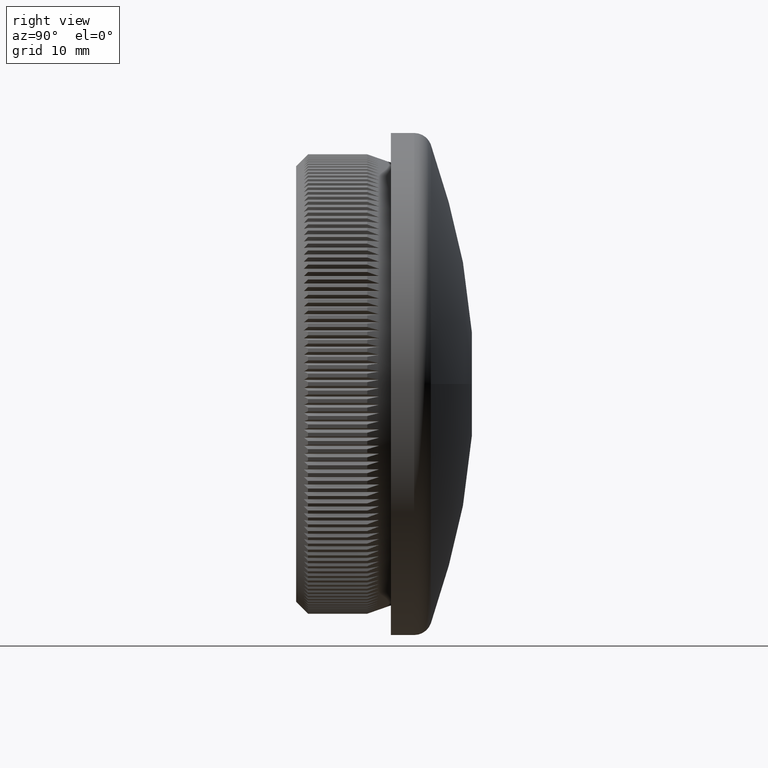
[diagram: clean part render]
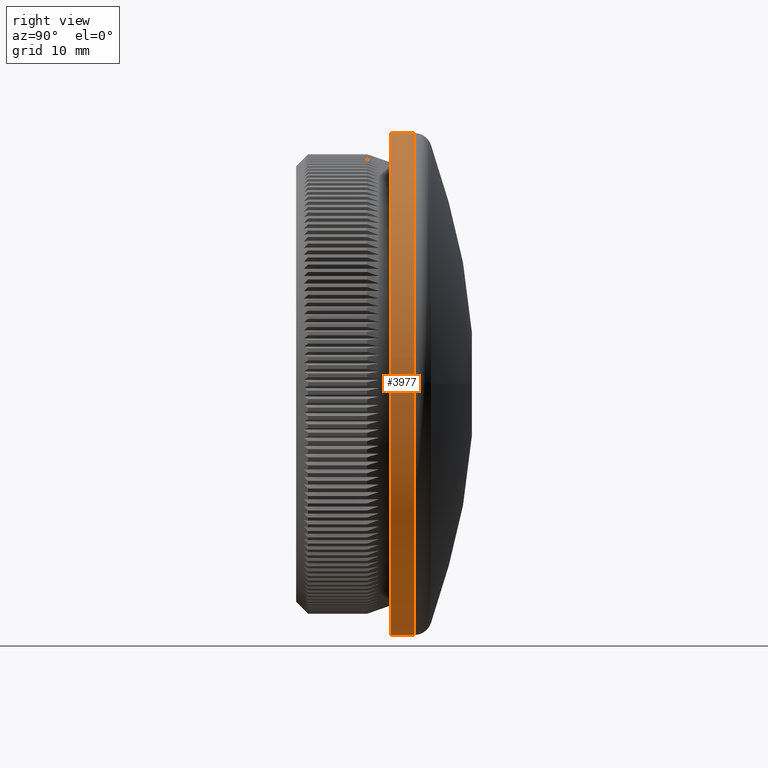
[diagram: same view with one face highlighted and labeled with its STEP entity id]
A machine part, right view. The second image highlights one B-rep face of the part: STEP entity #3977.
In plain terms, the highlighted cylindrical surface (partial cylindrical patch) has radius 21.2 mm, axis along (-0, -1, -0).
Its self-contained STEP definition (entity closure, byte-faithful):
#924 = EDGE_CURVE ( 'NONE', #30257, #22339, #29380, .T. ) ;
#2291 = CARTESIAN_POINT ( 'NONE',  ( 2.596251214192388800E-015, 8.000000000000000000, 21.19999999999999900 ) ) ;
#3977 = ADVANCED_FACE ( 'NONE', ( #16603 ), #26670, .T. ) ;
#4925 = VECTOR ( 'NONE', #10972, 1000.000000000000000 ) ;
#5280 = LINE ( 'NONE', #25202, #4925 ) ;
#5482 = EDGE_CURVE ( 'NONE', #30257, #8980, #26649, .T. ) ;
#5561 = EDGE_CURVE ( 'NONE', #8980, #18014, #22948, .T. ) ;
#5886 = ORIENTED_EDGE ( 'NONE', *, *, #24978, .T. ) ;
#6986 = CARTESIAN_POINT ( 'NONE',  ( 0.0000000000000000000, 9.966330070852492900, -21.20000000000000300 ) ) ;
#8168 = CARTESIAN_POINT ( 'NONE',  ( 0.0000000000000000000, 8.000000000000000000, 0.0000000000000000000 ) ) ;
#8980 = VERTEX_POINT ( 'NONE', #18906 ) ;
#9166 = ORIENTED_EDGE ( 'NONE', *, *, #5561, .F. ) ;
#10972 = DIRECTION ( 'NONE',  ( -0.0000000000000000000, -1.000000000000000000, -0.0000000000000000000 ) ) ;
#11578 = CARTESIAN_POINT ( 'NONE',  ( 0.0000000000000000000, 0.0000000000000000000, 0.0000000000000000000 ) ) ;
#11695 = DIRECTION ( 'NONE',  ( 0.0000000000000000000, 0.0000000000000000000, -1.000000000000000000 ) ) ;
#12718 = AXIS2_PLACEMENT_3D ( 'NONE', #18659, #21086, #18762 ) ;
#13584 = AXIS2_PLACEMENT_3D ( 'NONE', #8168, #18289, #11695 ) ;
#16603 = FACE_OUTER_BOUND ( 'NONE', #22788, .T. ) ;
#16926 = CARTESIAN_POINT ( 'NONE',  ( 0.0000000000000000000, 0.0000000000000000000, -21.20000000000000300 ) ) ;
#18014 = VERTEX_POINT ( 'NONE', #2291 ) ;
#18289 = DIRECTION ( 'NONE',  ( -0.0000000000000000000, -1.000000000000000000, -0.0000000000000000000 ) ) ;
#18415 = DIRECTION ( 'NONE',  ( -0.0000000000000000000, -1.000000000000000000, -0.0000000000000000000 ) ) ;
#18627 = DIRECTION ( 'NONE',  ( 0.0000000000000000000, 0.0000000000000000000, -1.000000000000000000 ) ) ;
#18659 = CARTESIAN_POINT ( 'NONE',  ( 0.0000000000000000000, 9.966330070852492900, 0.0000000000000000000 ) ) ;
#18720 = AXIS2_PLACEMENT_3D ( 'NONE', #11578, #18415, #18627 ) ;
#18762 = DIRECTION ( 'NONE',  ( 0.0000000000000000000, 0.0000000000000000000, -1.000000000000000000 ) ) ;
#18906 = CARTESIAN_POINT ( 'NONE',  ( 0.0000000000000000000, 8.000000000000000000, -21.19999999999999900 ) ) ;
#19430 = DIRECTION ( 'NONE',  ( -0.0000000000000000000, -1.000000000000000000, -0.0000000000000000000 ) ) ;
#21086 = DIRECTION ( 'NONE',  ( -0.0000000000000000000, -1.000000000000000000, -0.0000000000000000000 ) ) ;
#22339 = VERTEX_POINT ( 'NONE', #26395 ) ;
#22788 = EDGE_LOOP ( 'NONE', ( #24061, #5886, #9166, #30159 ) ) ;
#22948 = CIRCLE ( 'NONE', #13584, 21.19999999999999900 ) ;
#24061 = ORIENTED_EDGE ( 'NONE', *, *, #924, .T. ) ;
#24978 = EDGE_CURVE ( 'NONE', #22339, #18014, #5280, .T. ) ;
#25202 = CARTESIAN_POINT ( 'NONE',  ( 2.596251214192389200E-015, 0.0000000000000000000, 21.20000000000000300 ) ) ;
#26395 = CARTESIAN_POINT ( 'NONE',  ( 2.596251214192389200E-015, 9.966330070852492900, 21.20000000000000300 ) ) ;
#26649 = LINE ( 'NONE', #16926, #29979 ) ;
#26670 = CYLINDRICAL_SURFACE ( 'NONE', #18720, 21.20000000000000300 ) ;
#29380 = CIRCLE ( 'NONE', #12718, 21.20000000000000300 ) ;
#29979 = VECTOR ( 'NONE', #19430, 1000.000000000000000 ) ;
#30159 = ORIENTED_EDGE ( 'NONE', *, *, #5482, .F. ) ;
#30257 = VERTEX_POINT ( 'NONE', #6986 ) ;